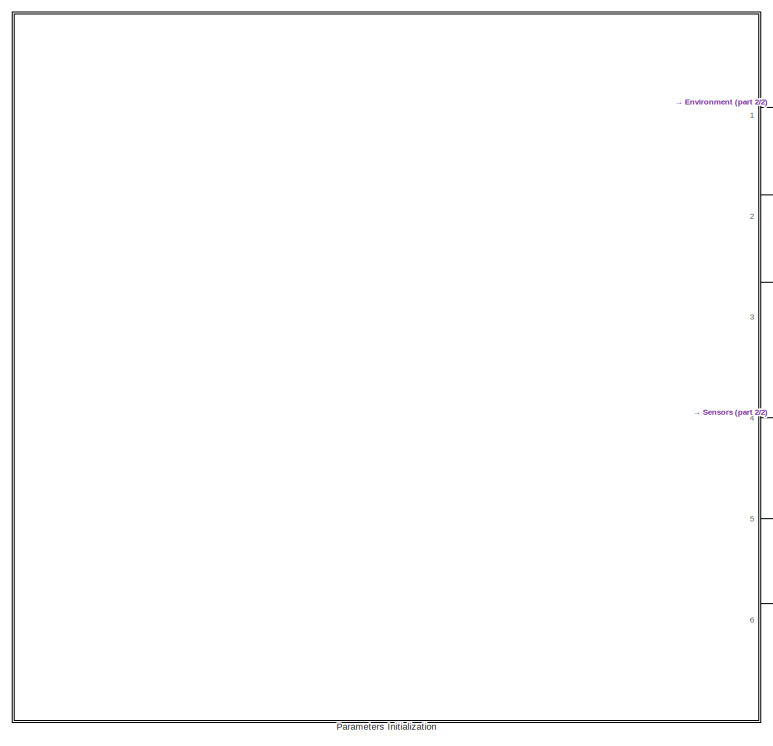
[diagram: root canvas - part 1/2, left side, full height]
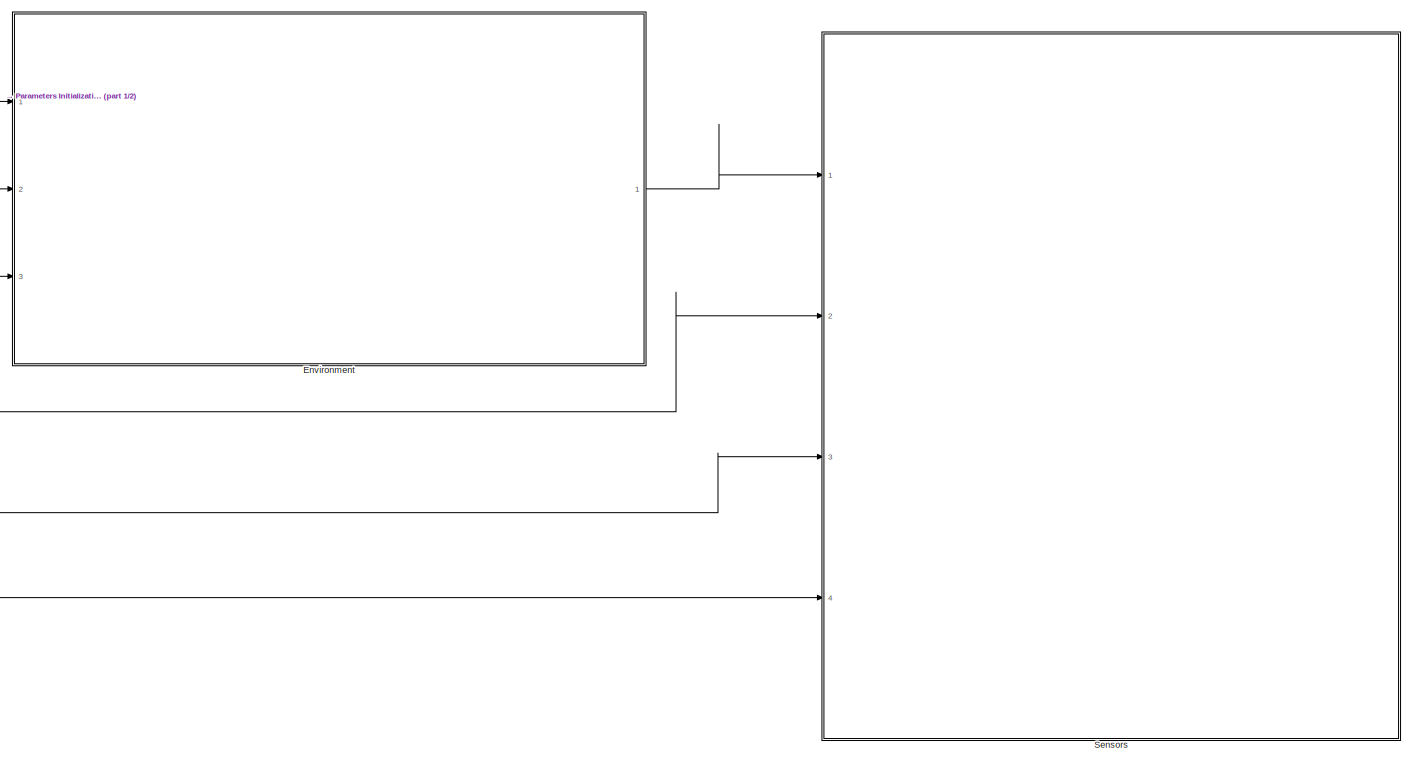
[diagram: root canvas - part 2/2, right side, full height]
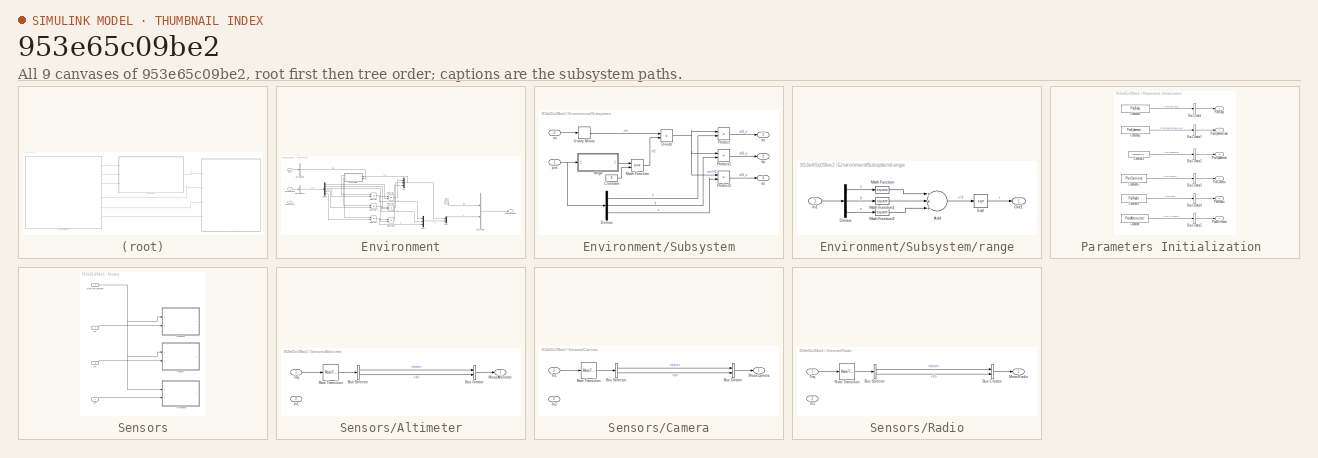
[diagram: thumbnail index - all 9 canvases of the model, root first then tree order]
MODEL slx_953e65c09be2
KIND model
CONFIG AbsTol = 1e-16
CONFIG EnableMultiTasking = off
CONFIG FixedStep = auto
CONFIG MaxStep = 60
CONFIG MinStep = 1e-13
CONFIG RelTol = 1e-16
CONFIG SampleTimeConstraint = Unconstrained
CONFIG Solver = ode113
CONFIG SolverName = ode113
CONFIG StartTime = 0.0
CONFIG StopTime = 7200
WORKSPACE source: mxarray member
WORKSPACE mi = 1
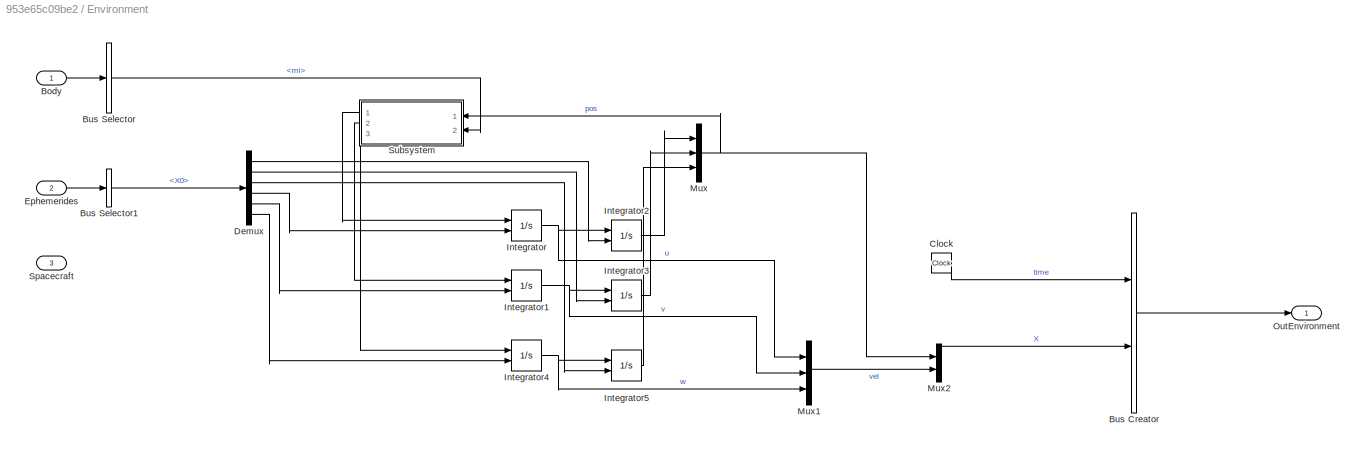
BLOCK [SubSystem] Environment
  Ports = [3, 1]
  RequestExecContextInheritance = off
BLOCK [Inport] Environment/Body
  IconDisplay = Port number
BLOCK [BusCreator] Environment/Bus Creator
  DisplayOption = bar
  InheritFromInputs = on
  Inputs = 2
  Ports = [2, 1]
BLOCK [BusSelector] Environment/Bus Selector
  OutputAsBus = off
  OutputSignals = ParBody_Bus.mi
  Ports = [1, 1]
BLOCK [BusSelector] Environment/Bus Selector1
  OutputAsBus = off
  OutputSignals = ParEphemerides_Bus.X0
  Ports = [1, 1]
BLOCK [Clock] Environment/Clock
BLOCK [Demux] Environment/Demux
  DisplayOption = bar
  Outputs = 6
  Ports = [1, 6]
BLOCK [Inport] Environment/Ephemerides
  IconDisplay = Port number
  Port = 2
BLOCK [Integrator] Environment/Integrator
  ContinuousStateAttributes = ""
  InitialConditionSource = external
  Ports = [2, 1]
BLOCK [Integrator] Environment/Integrator1
  ContinuousStateAttributes = ""
  InitialConditionSource = external
  Ports = [2, 1]
BLOCK [Integrator] Environment/Integrator2
  ContinuousStateAttributes = ""
  InitialConditionSource = external
  Ports = [2, 1]
BLOCK [Integrator] Environment/Integrator3
  ContinuousStateAttributes = ""
  InitialConditionSource = external
  Ports = [2, 1]
BLOCK [Integrator] Environment/Integrator4
  ContinuousStateAttributes = ""
  InitialConditionSource = external
  Ports = [2, 1]
BLOCK [Integrator] Environment/Integrator5
  ContinuousStateAttributes = ""
  InitialConditionSource = external
  Ports = [2, 1]
BLOCK [Mux] Environment/Mux
  DisplayOption = bar
  Inputs = 3
  Ports = [3, 1]
BLOCK [Mux] Environment/Mux1
  DisplayOption = bar
  Inputs = 3
  Ports = [3, 1]
BLOCK [Mux] Environment/Mux2
  DisplayOption = bar
  Inputs = 2
  Ports = [2, 1]
BLOCK [Outport] Environment/OutEnvironment
  IconDisplay = Port number
BLOCK [Inport] Environment/Spacecraft
  IconDisplay = Port number
  Port = 3
BLOCK [SubSystem] Environment/Subsystem
  Ports = [2, 3]
  RequestExecContextInheritance = off
BLOCK [Constant] Environment/Subsystem/Constant
  Value = 3
BLOCK [Demux] Environment/Subsystem/Demux
  DisplayOption = bar
  Outputs = 3
  Ports = [1, 3]
BLOCK [Product] Environment/Subsystem/Divide
  InputSameDT = off
  Inputs = */
  OutDataTypeStr = Inherit: Inherit via internal rule
  Ports = [2, 1]
  RndMeth = Floor
  SaturateOnIntegerOverflow = off
BLOCK [Math] Environment/Subsystem/Math Function
  Operator = pow
  Ports = [2, 1]
  SignedPower = off
BLOCK [Product] Environment/Subsystem/Product
  InputSameDT = off
  OutDataTypeStr = Inherit: Inherit via internal rule
  Ports = [2, 1]
  RndMeth = Floor
  SaturateOnIntegerOverflow = off
BLOCK [Product] Environment/Subsystem/Product1
  InputSameDT = off
  OutDataTypeStr = Inherit: Inherit via internal rule
  Ports = [2, 1]
  RndMeth = Floor
  SaturateOnIntegerOverflow = off
BLOCK [Product] Environment/Subsystem/Product2
  InputSameDT = off
  OutDataTypeStr = Inherit: Inherit via internal rule
  Ports = [2, 1]
  RndMeth = Floor
  SaturateOnIntegerOverflow = off
BLOCK [UnaryMinus] Environment/Subsystem/Unary Minus
BLOCK [Outport] Environment/Subsystem/ax
  IconDisplay = Port number
BLOCK [Outport] Environment/Subsystem/ay
  IconDisplay = Port number
  Port = 2
BLOCK [Outport] Environment/Subsystem/az
  IconDisplay = Port number
  Port = 3
BLOCK [Inport] Environment/Subsystem/mi
  IconDisplay = Port number
  Port = 2
BLOCK [Inport] Environment/Subsystem/pos
  IconDisplay = Port number
BLOCK [SubSystem] Environment/Subsystem/range
  Ports = [1, 1]
  RequestExecContextInheritance = off
BLOCK [Sum] Environment/Subsystem/range/Add
  InputSameDT = off
  Inputs = +++
  OutDataTypeStr = Inherit: Inherit via internal rule
  Ports = [3, 1]
  SaturateOnIntegerOverflow = off
BLOCK [Demux] Environment/Subsystem/range/Demux
  DisplayOption = bar
  Outputs = 3
  Ports = [1, 3]
BLOCK [Inport] Environment/Subsystem/range/In1
  IconDisplay = Port number
BLOCK [Math] Environment/Subsystem/range/Math Function
  Operator = square
  Ports = [1, 1]
  SignedPower = off
BLOCK [Math] Environment/Subsystem/range/Math Function1
  Operator = square
  Ports = [1, 1]
  SignedPower = off
BLOCK [Math] Environment/Subsystem/range/Math Function2
  Operator = square
  Ports = [1, 1]
  SignedPower = off
BLOCK [Outport] Environment/Subsystem/range/Out1
  IconDisplay = Port number
BLOCK [Sqrt] Environment/Subsystem/range/Sqrt
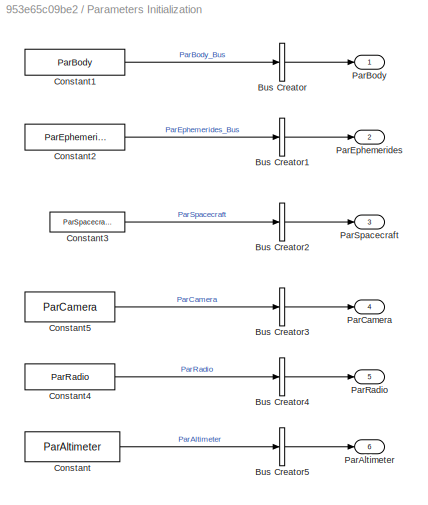
BLOCK [SubSystem] Parameters Initialization 
  Ports = [0, 6]
  RequestExecContextInheritance = off
BLOCK [BusCreator] Parameters Initialization /Bus Creator
  DisplayOption = bar
  InheritFromInputs = on
  Inputs = 1
  Ports = [1, 1]
BLOCK [BusCreator] Parameters Initialization /Bus Creator1
  DisplayOption = bar
  InheritFromInputs = on
  Inputs = 1
  Ports = [1, 1]
BLOCK [BusCreator] Parameters Initialization /Bus Creator2
  DisplayOption = bar
  InheritFromInputs = on
  Inputs = 1
  Ports = [1, 1]
BLOCK [BusCreator] Parameters Initialization /Bus Creator3
  DisplayOption = bar
  InheritFromInputs = on
  Inputs = 1
  Ports = [1, 1]
BLOCK [BusCreator] Parameters Initialization /Bus Creator4
  DisplayOption = bar
  InheritFromInputs = on
  Inputs = 1
  Ports = [1, 1]
BLOCK [BusCreator] Parameters Initialization /Bus Creator5
  DisplayOption = bar
  InheritFromInputs = on
  Inputs = 1
  Ports = [1, 1]
BLOCK [Constant] Parameters Initialization /Constant
  OutDataTypeStr = Bus: ParAltimeter_Bus
  Value = ParAltimeter
BLOCK [Constant] Parameters Initialization /Constant1
  OutDataTypeStr = Bus: ParBody_Bus
  Value = ParBody
BLOCK [Constant] Parameters Initialization /Constant2
  OutDataTypeStr = Bus: ParEphemerides_Bus
  Value = ParEphemerides
BLOCK [Constant] Parameters Initialization /Constant3
  OutDataTypeStr = Bus: ParSpacecraft_Bus
  Value = ParSpacecraft
BLOCK [Constant] Parameters Initialization /Constant4
  OutDataTypeStr = Bus: ParRadio_Bus
  Value = ParRadio
BLOCK [Constant] Parameters Initialization /Constant5
  OutDataTypeStr = Bus: ParCamera_Bus
  Value = ParCamera
BLOCK [Outport] Parameters Initialization /ParAltimeter
  IconDisplay = Port number
  Port = 6
BLOCK [Outport] Parameters Initialization /ParBody
  IconDisplay = Port number
BLOCK [Outport] Parameters Initialization /ParCamera
  IconDisplay = Port number
  Port = 4
BLOCK [Outport] Parameters Initialization /ParEphemerides
  IconDisplay = Port number
  Port = 2
BLOCK [Outport] Parameters Initialization /ParRadio
  IconDisplay = Port number
  Port = 5
BLOCK [Outport] Parameters Initialization /ParSpacecraft
  IconDisplay = Port number
  Port = 3
BLOCK [SubSystem] Sensors
  Ports = [4]
  RequestExecContextInheritance = off
BLOCK [SubSystem] Sensors/Altimeter
  Ports = [2, 1]
  RequestExecContextInheritance = off
BLOCK [BusCreator] Sensors/Altimeter/Bus Creator
  DisplayOption = bar
  InheritFromInputs = on
  Inputs = 2
  Ports = [2, 1]
BLOCK [BusSelector] Sensors/Altimeter/Bus Selector
  OutputAsBus = off
  OutputSignals = time,X
  Ports = [1, 2]
BLOCK [Inport] Sensors/Altimeter/In1
  IconDisplay = Port number
  Port = 2
BLOCK [Outport] Sensors/Altimeter/MeasAltimeter
  IconDisplay = Port number
BLOCK [RateTransition] Sensors/Altimeter/Rate Transition
  OutPortSampleTime = ParAltimeter.countime
BLOCK [Inport] Sensors/Altimeter/Traj
  IconDisplay = Port number
BLOCK [SubSystem] Sensors/Camera
  Ports = [2, 1]
  RequestExecContextInheritance = off
BLOCK [BusCreator] Sensors/Camera/Bus Creator
  DisplayOption = bar
  InheritFromInputs = on
  Inputs = 2
  Ports = [2, 1]
BLOCK [BusSelector] Sensors/Camera/Bus Selector
  OutputAsBus = off
  OutputSignals = time,X
  Ports = [1, 2]
BLOCK [Inport] Sensors/Camera/In1
  IconDisplay = Port number
BLOCK [Inport] Sensors/Camera/In2
  IconDisplay = Port number
  Port = 2
BLOCK [Outport] Sensors/Camera/MeasCamera
  IconDisplay = Port number
BLOCK [RateTransition] Sensors/Camera/Rate Transition
  OutPortSampleTime = ParCamera.countime
BLOCK [Inport] Sensors/In1
  IconDisplay = Port number
  Port = 2
BLOCK [Inport] Sensors/In2
  IconDisplay = Port number
  Port = 3
BLOCK [Inport] Sensors/In3
  IconDisplay = Port number
  Port = 4
BLOCK [Inport] Sensors/OutEnvironment
  IconDisplay = Port number
BLOCK [SubSystem] Sensors/Radio
  Ports = [2, 1]
  RequestExecContextInheritance = off
BLOCK [BusCreator] Sensors/Radio/Bus Creator
  DisplayOption = bar
  InheritFromInputs = on
  Inputs = 2
  Ports = [2, 1]
BLOCK [BusSelector] Sensors/Radio/Bus Selector
  OutputAsBus = off
  OutputSignals = time,X
  Ports = [1, 2]
BLOCK [Inport] Sensors/Radio/In1
  IconDisplay = Port number
  Port = 2
BLOCK [Outport] Sensors/Radio/MeasRadio
  IconDisplay = Port number
BLOCK [RateTransition] Sensors/Radio/Rate Transition
  OutPortSampleTime = ParRadio.countime
BLOCK [Inport] Sensors/Radio/Traj
  IconDisplay = Port number
LINE Environment/Body:1 -> Environment/Bus Selector:1
LINE Environment/Bus Creator:1 -> Environment/OutEnvironment:1
LINE Environment/Bus Selector1:1 -> Environment/Demux:1
LINE Environment/Bus Selector:1 -> Environment/Subsystem:2
LINE Environment/Clock:1 -> Environment/Bus Creator:1
LINE Environment/Demux:1 -> Environment/Integrator2:2
LINE Environment/Demux:2 -> Environment/Integrator3:2
LINE Environment/Demux:3 -> Environment/Integrator5:2
LINE Environment/Demux:4 -> Environment/Integrator:2
LINE Environment/Demux:5 -> Environment/Integrator1:2
LINE Environment/Demux:6 -> Environment/Integrator4:2
LINE Environment/Ephemerides:1 -> Environment/Bus Selector1:1
NET Environment/Integrator1:1 -> Environment/Integrator3:1, Environment/Mux1:2
LINE Environment/Integrator2:1 -> Environment/Mux:1
LINE Environment/Integrator3:1 -> Environment/Mux:2
NET Environment/Integrator4:1 -> Environment/Integrator5:1, Environment/Mux1:3
LINE Environment/Integrator5:1 -> Environment/Mux:3
NET Environment/Integrator:1 -> Environment/Integrator2:1, Environment/Mux1:1
LINE Environment/Mux1:1 -> Environment/Mux2:2
LINE Environment/Mux2:1 -> Environment/Bus Creator:2
NET Environment/Mux:1 -> Environment/Mux2:1, Environment/Subsystem:1
LINE Environment/Subsystem/Constant:1 -> Environment/Subsystem/Math Function:2
LINE Environment/Subsystem/Demux:1 -> Environment/Subsystem/Product:2
LINE Environment/Subsystem/Demux:2 -> Environment/Subsystem/Product1:2
LINE Environment/Subsystem/Demux:3 -> Environment/Subsystem/Product2:2
NET Environment/Subsystem/Divide:1 -> Environment/Subsystem/Product1:1, Environment/Subsystem/Product2:1, Environment/Subsystem/Product:1
LINE Environment/Subsystem/Math Function:1 -> Environment/Subsystem/Divide:2
LINE Environment/Subsystem/Product1:1 -> Environment/Subsystem/ay:1
LINE Environment/Subsystem/Product2:1 -> Environment/Subsystem/az:1
LINE Environment/Subsystem/Product:1 -> Environment/Subsystem/ax:1
LINE Environment/Subsystem/Unary Minus:1 -> Environment/Subsystem/Divide:1
LINE Environment/Subsystem/mi:1 -> Environment/Subsystem/Unary Minus:1
NET Environment/Subsystem/pos:1 -> Environment/Subsystem/Demux:1, Environment/Subsystem/range:1
LINE Environment/Subsystem/range/Add:1 -> Environment/Subsystem/range/Sqrt:1
LINE Environment/Subsystem/range/Demux:1 -> Environment/Subsystem/range/Math Function:1
LINE Environment/Subsystem/range/Demux:2 -> Environment/Subsystem/range/Math Function1:1
LINE Environment/Subsystem/range/Demux:3 -> Environment/Subsystem/range/Math Function2:1
LINE Environment/Subsystem/range/In1:1 -> Environment/Subsystem/range/Demux:1
LINE Environment/Subsystem/range/Math Function1:1 -> Environment/Subsystem/range/Add:2
LINE Environment/Subsystem/range/Math Function2:1 -> Environment/Subsystem/range/Add:3
LINE Environment/Subsystem/range/Math Function:1 -> Environment/Subsystem/range/Add:1
LINE Environment/Subsystem/range/Sqrt:1 -> Environment/Subsystem/range/Out1:1
LINE Environment/Subsystem/range:1 -> Environment/Subsystem/Math Function:1
LINE Environment/Subsystem:1 -> Environment/Integrator:1
LINE Environment/Subsystem:2 -> Environment/Integrator1:1
LINE Environment/Subsystem:3 -> Environment/Integrator4:1
LINE Environment:1 -> Sensors:1
LINE Parameters Initialization /Bus Creator1:1 -> Parameters Initialization /ParEphemerides:1
LINE Parameters Initialization /Bus Creator2:1 -> Parameters Initialization /ParSpacecraft:1
LINE Parameters Initialization /Bus Creator3:1 -> Parameters Initialization /ParCamera:1
LINE Parameters Initialization /Bus Creator4:1 -> Parameters Initialization /ParRadio:1
LINE Parameters Initialization /Bus Creator5:1 -> Parameters Initialization /ParAltimeter:1
LINE Parameters Initialization /Bus Creator:1 -> Parameters Initialization /ParBody:1
LINE Parameters Initialization /Constant1:1 -> Parameters Initialization /Bus Creator:1
LINE Parameters Initialization /Constant2:1 -> Parameters Initialization /Bus Creator1:1
LINE Parameters Initialization /Constant3:1 -> Parameters Initialization /Bus Creator2:1
LINE Parameters Initialization /Constant4:1 -> Parameters Initialization /Bus Creator4:1
LINE Parameters Initialization /Constant5:1 -> Parameters Initialization /Bus Creator3:1
LINE Parameters Initialization /Constant:1 -> Parameters Initialization /Bus Creator5:1
LINE Parameters Initialization :1 -> Environment:1
LINE Parameters Initialization :2 -> Environment:2
LINE Parameters Initialization :3 -> Environment:3
LINE Parameters Initialization :4 -> Sensors:2
LINE Parameters Initialization :5 -> Sensors:3
LINE Parameters Initialization :6 -> Sensors:4
LINE Sensors/Altimeter/Bus Creator:1 -> Sensors/Altimeter/MeasAltimeter:1
LINE Sensors/Altimeter/Bus Selector:1 -> Sensors/Altimeter/Bus Creator:1
LINE Sensors/Altimeter/Bus Selector:2 -> Sensors/Altimeter/Bus Creator:2
LINE Sensors/Altimeter/Rate Transition:1 -> Sensors/Altimeter/Bus Selector:1
LINE Sensors/Altimeter/Traj:1 -> Sensors/Altimeter/Rate Transition:1
LINE Sensors/Camera/Bus Creator:1 -> Sensors/Camera/MeasCamera:1
LINE Sensors/Camera/Bus Selector:1 -> Sensors/Camera/Bus Creator:1
LINE Sensors/Camera/Bus Selector:2 -> Sensors/Camera/Bus Creator:2
LINE Sensors/Camera/In1:1 -> Sensors/Camera/Rate Transition:1
LINE Sensors/Camera/Rate Transition:1 -> Sensors/Camera/Bus Selector:1
LINE Sensors/In1:1 -> Sensors/Camera:2
LINE Sensors/In2:1 -> Sensors/Radio:2
LINE Sensors/In3:1 -> Sensors/Altimeter:2
NET Sensors/OutEnvironment:1 -> Sensors/Altimeter:1, Sensors/Camera:1, Sensors/Radio:1
LINE Sensors/Radio/Bus Creator:1 -> Sensors/Radio/MeasRadio:1
LINE Sensors/Radio/Bus Selector:1 -> Sensors/Radio/Bus Creator:1
LINE Sensors/Radio/Bus Selector:2 -> Sensors/Radio/Bus Creator:2
LINE Sensors/Radio/Rate Transition:1 -> Sensors/Radio/Bus Selector:1
LINE Sensors/Radio/Traj:1 -> Sensors/Radio/Rate Transition:1
note: NET lines group one-source signal fan-out (src -> all destinations, sorted); 1:1 wires keep LINE
